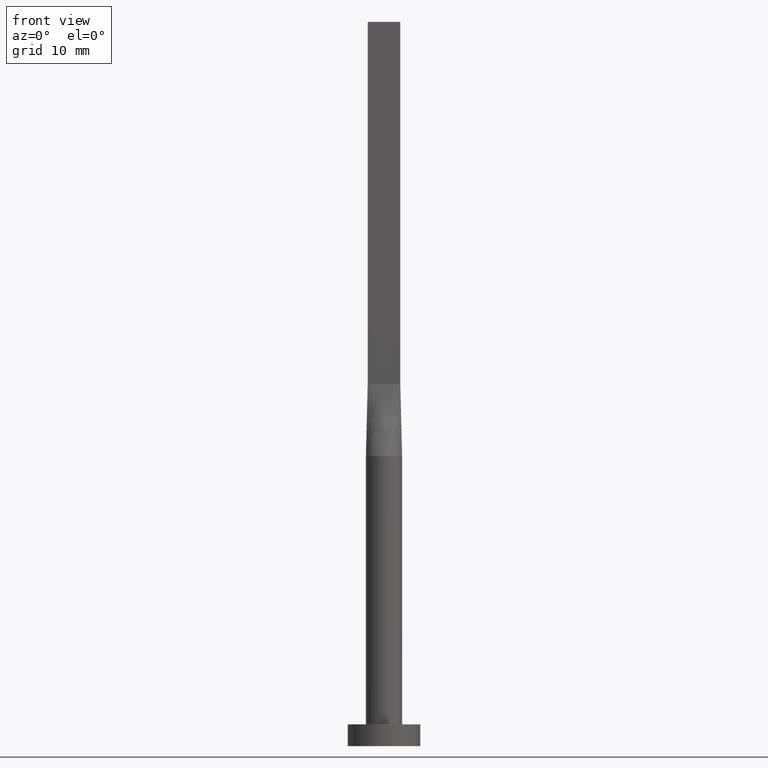
[diagram: clean part render]
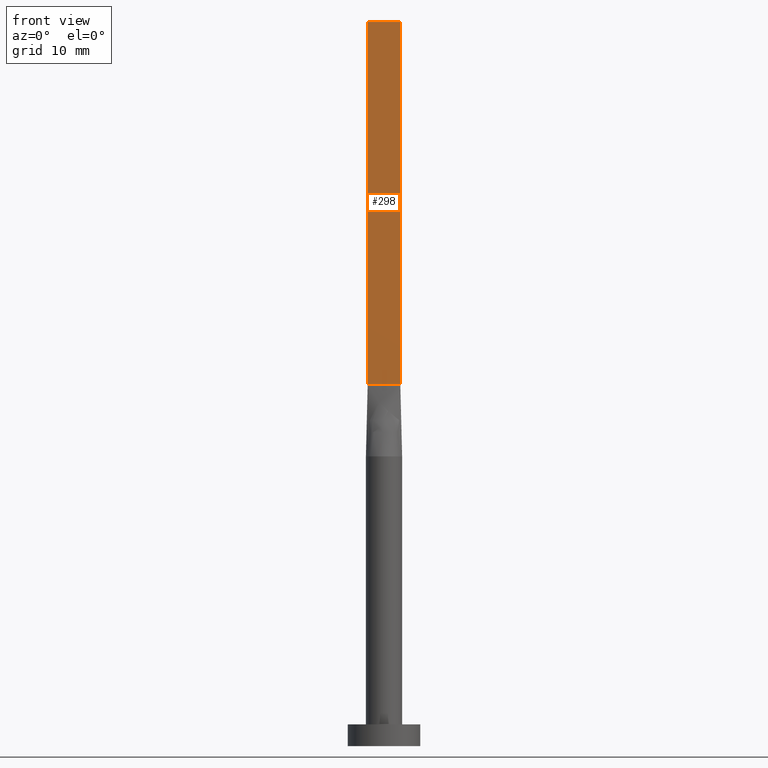
[diagram: same view with one face highlighted and labeled with its STEP entity id]
A machine part, front view. The second image highlights one B-rep face of the part: STEP entity #298.
In plain terms, the highlighted planar face has unit normal (0, 1, -0).
Its self-contained STEP definition (entity closure, byte-faithful):
#2 = DIRECTION ( 'NONE',  ( -1.000000000000000000, 7.228014483236697048E-17, 0.000000000000000000 ) ) ;
#18 = VERTEX_POINT ( 'NONE', #171 ) ;
#26 = EDGE_CURVE ( 'NONE', #323, #475, #43, .T. ) ;
#32 = VECTOR ( 'NONE', #51, 1000.000000000000000 ) ;
#43 = LINE ( 'NONE', #225, #396 ) ;
#46 = DIRECTION ( 'NONE',  ( 7.228014483236697048E-17, 1.000000000000000000, -0.000000000000000000 ) ) ;
#51 = DIRECTION ( 'NONE',  ( -0.000000000000000000, -0.000000000000000000, -1.000000000000000000 ) ) ;
#57 = ORIENTED_EDGE ( 'NONE', *, *, #293, .F. ) ;
#129 = DIRECTION ( 'NONE',  ( 1.000000000000000000, -7.228014483236697048E-17, 0.000000000000000000 ) ) ;
#132 = AXIS2_PLACEMENT_3D ( 'NONE', #455, #46, #2 ) ;
#140 = LINE ( 'NONE', #321, #32 ) ;
#171 = CARTESIAN_POINT ( 'NONE',  ( -2.250000000000000000, -0.4999999999999994449, 50.00000000000000000 ) ) ;
#191 = VECTOR ( 'NONE', #341, 1000.000000000000000 ) ;
#225 = CARTESIAN_POINT ( 'NONE',  ( -2.250000000000000000, -0.4999999999999994449, 100.0000000000000000 ) ) ;
#230 = CARTESIAN_POINT ( 'NONE',  ( 2.250000000000000000, -0.4999999999999997780, 50.00000000000000000 ) ) ;
#234 = EDGE_CURVE ( 'NONE', #323, #18, #405, .T. ) ;
#246 = CARTESIAN_POINT ( 'NONE',  ( -2.250000000000000000, -0.4999999999999994449, 50.00000000000000000 ) ) ;
#262 = ORIENTED_EDGE ( 'NONE', *, *, #26, .F. ) ;
#267 = VECTOR ( 'NONE', #485, 1000.000000000000000 ) ;
#275 = FACE_OUTER_BOUND ( 'NONE', #418, .T. ) ;
#293 = EDGE_CURVE ( 'NONE', #475, #407, #140, .T. ) ;
#298 = ADVANCED_FACE ( 'NONE', ( #275 ), #502, .F. ) ;
#321 = CARTESIAN_POINT ( 'NONE',  ( 2.250000000000000000, -0.4999999999999997780, 100.0000000000000000 ) ) ;
#323 = VERTEX_POINT ( 'NONE', #486 ) ;
#338 = ORIENTED_EDGE ( 'NONE', *, *, #234, .T. ) ;
#341 = DIRECTION ( 'NONE',  ( -0.000000000000000000, -0.000000000000000000, -1.000000000000000000 ) ) ;
#362 = CARTESIAN_POINT ( 'NONE',  ( -2.250000000000000000, -0.4999999999999994449, 100.0000000000000000 ) ) ;
#381 = LINE ( 'NONE', #246, #267 ) ;
#396 = VECTOR ( 'NONE', #129, 1000.000000000000000 ) ;
#405 = LINE ( 'NONE', #362, #191 ) ;
#407 = VERTEX_POINT ( 'NONE', #230 ) ;
#418 = EDGE_LOOP ( 'NONE', ( #557, #57, #262, #338 ) ) ;
#455 = CARTESIAN_POINT ( 'NONE',  ( -2.250000000000000000, -0.4999999999999994449, 100.0000000000000000 ) ) ;
#475 = VERTEX_POINT ( 'NONE', #511 ) ;
#485 = DIRECTION ( 'NONE',  ( 1.000000000000000000, -7.228014483236697048E-17, 0.000000000000000000 ) ) ;
#486 = CARTESIAN_POINT ( 'NONE',  ( -2.250000000000000000, -0.4999999999999994449, 100.0000000000000000 ) ) ;
#502 = PLANE ( 'NONE',  #132 ) ;
#511 = CARTESIAN_POINT ( 'NONE',  ( 2.250000000000000000, -0.4999999999999997780, 100.0000000000000000 ) ) ;
#557 = ORIENTED_EDGE ( 'NONE', *, *, #565, .T. ) ;
#565 = EDGE_CURVE ( 'NONE', #18, #407, #381, .T. ) ;